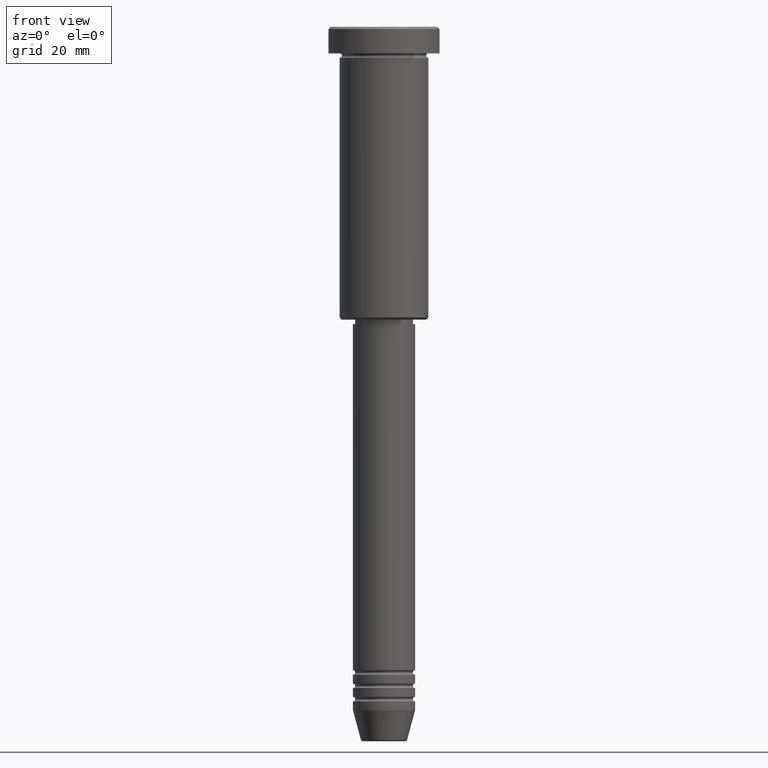
[diagram: clean part render]
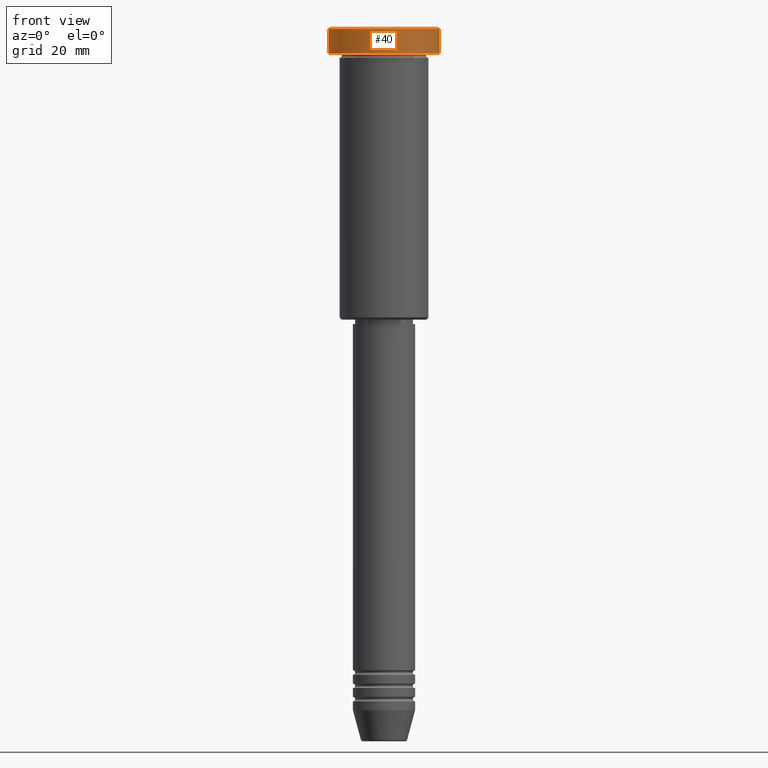
[diagram: same view with one face highlighted and labeled with its STEP entity id]
A machine part, front view. The second image highlights one B-rep face of the part: STEP entity #40.
In plain terms, the highlighted cylindrical surface (partial cylindrical patch) has radius 12.5 mm, axis along (-0, -0, 1).
Its self-contained STEP definition (entity closure, byte-faithful):
#5 = ORIENTED_EDGE ( 'NONE', *, *, #590, .F. ) ;
#19 = CARTESIAN_POINT ( 'NONE',  ( 0.000000000000000000, 0.000000000000000000, -5.999999999999996447 ) ) ;
#40 = ADVANCED_FACE ( 'NONE', ( #993 ), #1164, .T. ) ;
#73 = DIRECTION ( 'NONE',  ( 0.000000000000000000, 0.000000000000000000, -1.000000000000000000 ) ) ;
#126 = DIRECTION ( 'NONE',  ( -0.000000000000000000, -0.000000000000000000, 1.000000000000000000 ) ) ;
#196 = CARTESIAN_POINT ( 'NONE',  ( -12.50000000000000000, 1.530808498934191521E-15, -0.4999999999999917843 ) ) ;
#257 = DIRECTION ( 'NONE',  ( -0.000000000000000000, -0.000000000000000000, 1.000000000000000000 ) ) ;
#258 = DIRECTION ( 'NONE',  ( 1.000000000000000000, 0.000000000000000000, 0.000000000000000000 ) ) ;
#284 = AXIS2_PLACEMENT_3D ( 'NONE', #19, #126, #780 ) ;
#304 = CARTESIAN_POINT ( 'NONE',  ( -12.50000000000000000, 1.530808498934191521E-15, 0.000000000000000000 ) ) ;
#344 = CARTESIAN_POINT ( 'NONE',  ( 0.000000000000000000, 0.000000000000000000, 0.000000000000000000 ) ) ;
#350 = CARTESIAN_POINT ( 'NONE',  ( 0.000000000000000000, 0.000000000000000000, -0.4999999999999917843 ) ) ;
#462 = DIRECTION ( 'NONE',  ( -0.000000000000000000, -0.000000000000000000, 1.000000000000000000 ) ) ;
#463 = CIRCLE ( 'NONE', #687, 12.50000000000000000 ) ;
#503 = EDGE_CURVE ( 'NONE', #946, #797, #463, .T. ) ;
#537 = DIRECTION ( 'NONE',  ( 1.000000000000000000, 0.000000000000000000, 0.000000000000000000 ) ) ;
#564 = EDGE_CURVE ( 'NONE', #851, #1100, #823, .T. ) ;
#590 = EDGE_CURVE ( 'NONE', #851, #797, #1123, .T. ) ;
#600 = VECTOR ( 'NONE', #462, 1000.000000000000000 ) ;
#687 = AXIS2_PLACEMENT_3D ( 'NONE', #350, #73, #258 ) ;
#705 = CARTESIAN_POINT ( 'NONE',  ( 12.50000000000000000, 0.000000000000000000, 0.000000000000000000 ) ) ;
#753 = CARTESIAN_POINT ( 'NONE',  ( -12.50000000000000000, 1.530808498934191521E-15, -5.999999999999996447 ) ) ;
#780 = DIRECTION ( 'NONE',  ( 1.000000000000000000, 0.000000000000000000, 0.000000000000000000 ) ) ;
#797 = VERTEX_POINT ( 'NONE', #196 ) ;
#823 = CIRCLE ( 'NONE', #284, 12.50000000000000000 ) ;
#851 = VERTEX_POINT ( 'NONE', #753 ) ;
#890 = CARTESIAN_POINT ( 'NONE',  ( 12.50000000000000000, 0.000000000000000000, -0.4999999999999917843 ) ) ;
#938 = EDGE_LOOP ( 'NONE', ( #5, #986, #1055, #1113 ) ) ;
#941 = VECTOR ( 'NONE', #1040, 1000.000000000000000 ) ;
#946 = VERTEX_POINT ( 'NONE', #890 ) ;
#986 = ORIENTED_EDGE ( 'NONE', *, *, #564, .T. ) ;
#993 = FACE_OUTER_BOUND ( 'NONE', #938, .T. ) ;
#1005 = CARTESIAN_POINT ( 'NONE',  ( 12.50000000000000000, 0.000000000000000000, -5.999999999999996447 ) ) ;
#1012 = LINE ( 'NONE', #705, #600 ) ;
#1016 = AXIS2_PLACEMENT_3D ( 'NONE', #344, #257, #537 ) ;
#1040 = DIRECTION ( 'NONE',  ( -0.000000000000000000, -0.000000000000000000, 1.000000000000000000 ) ) ;
#1055 = ORIENTED_EDGE ( 'NONE', *, *, #1091, .T. ) ;
#1091 = EDGE_CURVE ( 'NONE', #1100, #946, #1012, .T. ) ;
#1100 = VERTEX_POINT ( 'NONE', #1005 ) ;
#1113 = ORIENTED_EDGE ( 'NONE', *, *, #503, .T. ) ;
#1123 = LINE ( 'NONE', #304, #941 ) ;
#1164 = CYLINDRICAL_SURFACE ( 'NONE', #1016, 12.50000000000000000 ) ;